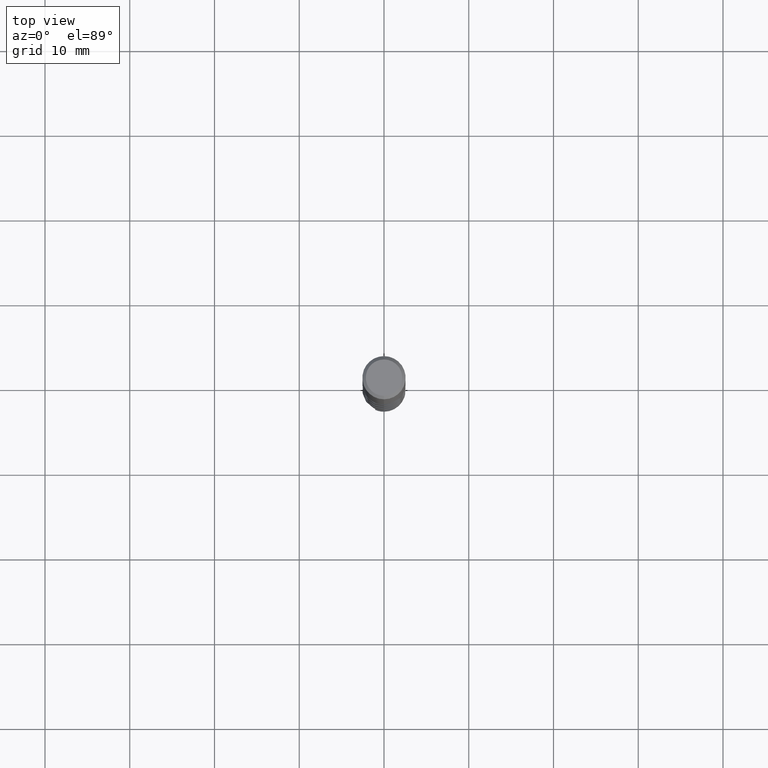
[diagram: clean part render]
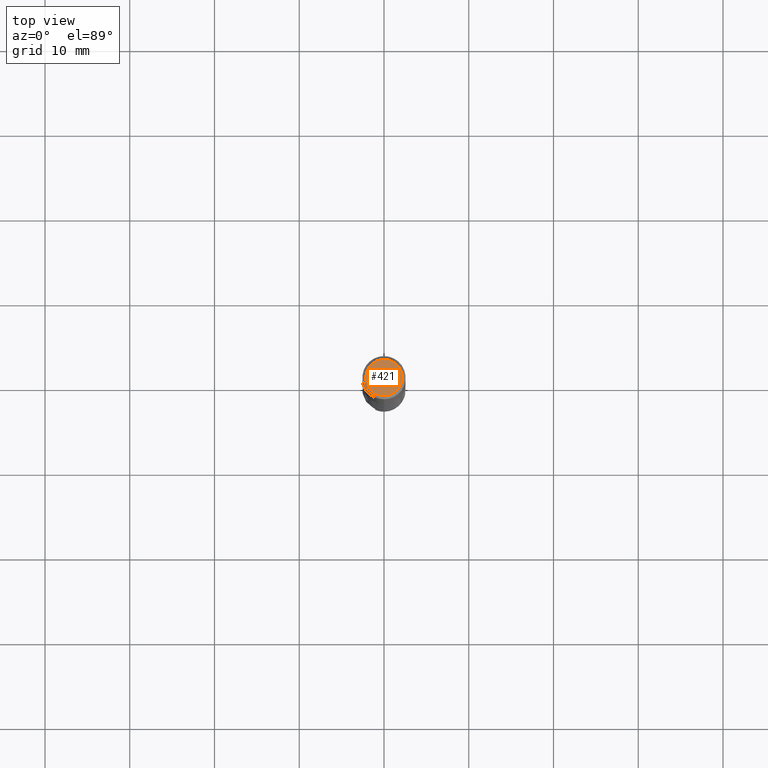
[diagram: same view with one face highlighted and labeled with its STEP entity id]
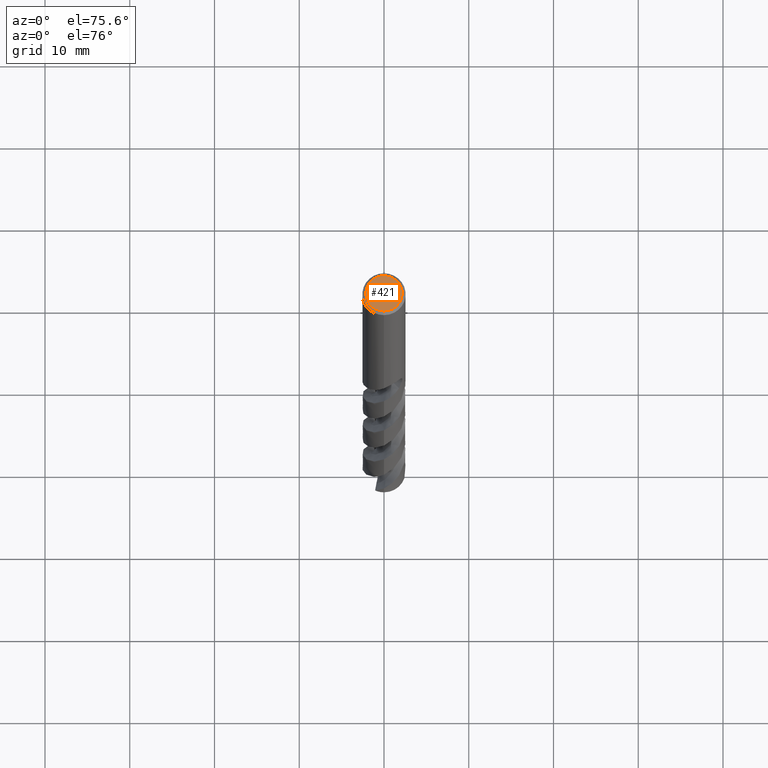
[diagram: same view with one face highlighted and labeled with its STEP entity id]
A machine part, top view. The second image highlights one B-rep face of the part: STEP entity #421.
A second angle (auxiliary view) of the same face is appended — the face is thin or edge-on in the first view.
In plain terms, the highlighted planar face has unit normal (-0, 0, 1).
Its self-contained STEP definition (entity closure, byte-faithful):
#315=VERTEX_POINT('',#854);
#389=EDGE_CURVE('',#315,#647,#937,.T.);
#421=ADVANCED_FACE('',(#973),#974,.T.);
#603=EDGE_CURVE('',#647,#315,#1171,.T.);
#647=VERTEX_POINT('',#1220);
#854=CARTESIAN_POINT('',(2.63290366071811E-016,-2.15,0.0));
#937=CIRCLE('',#3184,2.15);
#973=FACE_OUTER_BOUND('',#4844,.T.);
#974=PLANE('',#4845);
#1171=CIRCLE('',#6625,2.15);
#1220=CARTESIAN_POINT('',(0.0,2.15,0.0));
#3184=AXIS2_PLACEMENT_3D('',#12688,#12689,#12690);
#4844=EDGE_LOOP('',(#12722,#12723));
#4845=AXIS2_PLACEMENT_3D('',#12724,#12725,#12726);
#6625=AXIS2_PLACEMENT_3D('',#12947,#12948,#12949);
#12688=CARTESIAN_POINT('',(0.0,0.0,0.0));
#12689=DIRECTION('',(0.0,0.0,-1.0));
#12690=DIRECTION('',(0.0,1.0,0.0));
#12722=ORIENTED_EDGE('',*,*,#603,.F.);
#12723=ORIENTED_EDGE('',*,*,#389,.F.);
#12724=CARTESIAN_POINT('',(0.0,1.075,0.0));
#12725=DIRECTION('',(-0.0,0.0,1.0));
#12726=DIRECTION('',(0.0,-1.0,0.0));
#12947=CARTESIAN_POINT('',(0.0,0.0,0.0));
#12948=DIRECTION('',(0.0,0.0,-1.0));
#12949=DIRECTION('',(0.0,1.0,0.0));